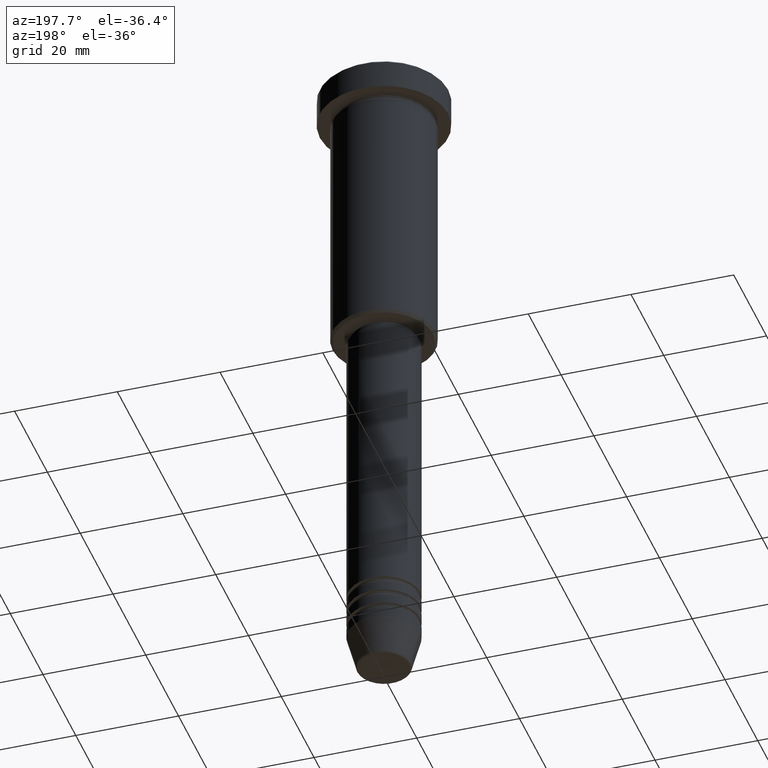
[diagram: clean part render]
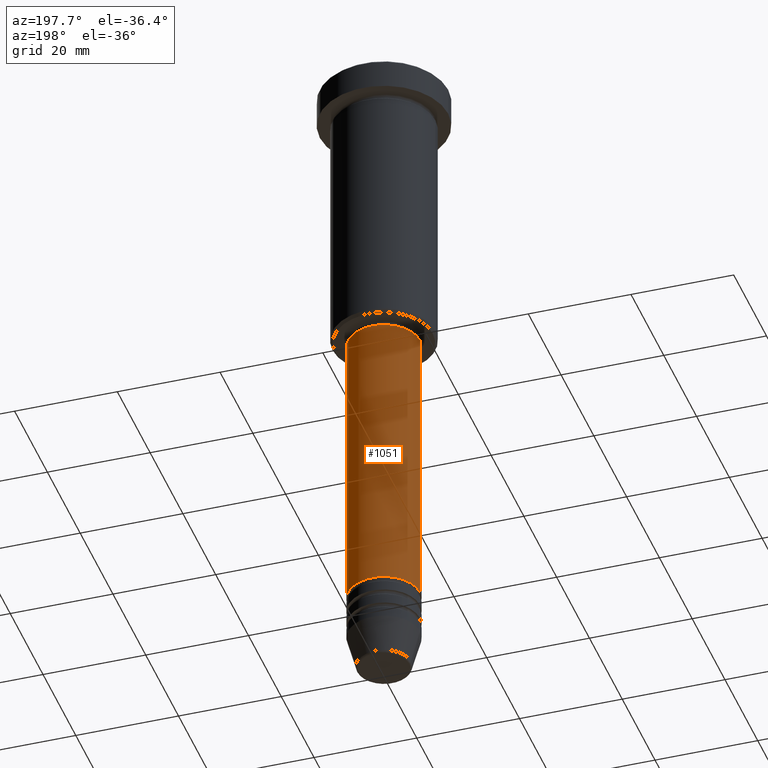
[diagram: same view with one face highlighted and labeled with its STEP entity id]
A machine part, auxiliary view. The second image highlights one B-rep face of the part: STEP entity #1051.
In plain terms, the highlighted cylindrical surface (partial cylindrical patch) has radius 7 mm, axis along (-0, -0, 1).
Its self-contained STEP definition (entity closure, byte-faithful):
#79 = EDGE_CURVE ( 'NONE', #837, #505, #297, .T. ) ;
#117 = VERTEX_POINT ( 'NONE', #1078 ) ;
#137 = EDGE_CURVE ( 'NONE', #824, #117, #781, .T. ) ;
#150 = ORIENTED_EDGE ( 'NONE', *, *, #323, .F. ) ;
#237 = CARTESIAN_POINT ( 'NONE',  ( 7.000000000000000000, 0.000000000000000000, -114.9999999999999574 ) ) ;
#297 = CIRCLE ( 'NONE', #629, 7.000000000000000000 ) ;
#302 = LINE ( 'NONE', #915, #732 ) ;
#323 = EDGE_CURVE ( 'NONE', #837, #824, #302, .T. ) ;
#416 = DIRECTION ( 'NONE',  ( 1.000000000000000000, 0.000000000000000000, 0.000000000000000000 ) ) ;
#418 = EDGE_CURVE ( 'NONE', #505, #117, #959, .T. ) ;
#430 = EDGE_LOOP ( 'NONE', ( #734, #1107, #437, #150 ) ) ;
#431 = FACE_OUTER_BOUND ( 'NONE', #430, .T. ) ;
#437 = ORIENTED_EDGE ( 'NONE', *, *, #137, .F. ) ;
#443 = CYLINDRICAL_SURFACE ( 'NONE', #545, 7.000000000000000000 ) ;
#505 = VERTEX_POINT ( 'NONE', #724 ) ;
#514 = CARTESIAN_POINT ( 'NONE',  ( 0.000000000000000000, 0.000000000000000000, -57.00000000000000000 ) ) ;
#520 = DIRECTION ( 'NONE',  ( -0.000000000000000000, -0.000000000000000000, 1.000000000000000000 ) ) ;
#545 = AXIS2_PLACEMENT_3D ( 'NONE', #1080, #723, #1068 ) ;
#601 = CARTESIAN_POINT ( 'NONE',  ( 7.000000000000000000, 0.000000000000000000, -57.00000000000000000 ) ) ;
#611 = AXIS2_PLACEMENT_3D ( 'NONE', #514, #520, #416 ) ;
#629 = AXIS2_PLACEMENT_3D ( 'NONE', #808, #1166, #987 ) ;
#723 = DIRECTION ( 'NONE',  ( -0.000000000000000000, -0.000000000000000000, 1.000000000000000000 ) ) ;
#724 = CARTESIAN_POINT ( 'NONE',  ( -7.000000000000000000, 8.572527594031473190E-16, -114.9999999999999574 ) ) ;
#732 = VECTOR ( 'NONE', #827, 1000.000000000000000 ) ;
#734 = ORIENTED_EDGE ( 'NONE', *, *, #79, .T. ) ;
#742 = VECTOR ( 'NONE', #964, 1000.000000000000000 ) ;
#781 = CIRCLE ( 'NONE', #611, 7.000000000000000000 ) ;
#808 = CARTESIAN_POINT ( 'NONE',  ( 0.000000000000000000, 0.000000000000000000, -114.9999999999999574 ) ) ;
#824 = VERTEX_POINT ( 'NONE', #601 ) ;
#827 = DIRECTION ( 'NONE',  ( -0.000000000000000000, -0.000000000000000000, 1.000000000000000000 ) ) ;
#837 = VERTEX_POINT ( 'NONE', #237 ) ;
#869 = CARTESIAN_POINT ( 'NONE',  ( -7.000000000000000000, 8.572527594031473190E-16, 0.000000000000000000 ) ) ;
#915 = CARTESIAN_POINT ( 'NONE',  ( 7.000000000000000000, 0.000000000000000000, 0.000000000000000000 ) ) ;
#959 = LINE ( 'NONE', #869, #742 ) ;
#964 = DIRECTION ( 'NONE',  ( -0.000000000000000000, -0.000000000000000000, 1.000000000000000000 ) ) ;
#987 = DIRECTION ( 'NONE',  ( 1.000000000000000000, 0.000000000000000000, 0.000000000000000000 ) ) ;
#1051 = ADVANCED_FACE ( 'NONE', ( #431 ), #443, .T. ) ;
#1068 = DIRECTION ( 'NONE',  ( 1.000000000000000000, 0.000000000000000000, 0.000000000000000000 ) ) ;
#1078 = CARTESIAN_POINT ( 'NONE',  ( -7.000000000000000000, 8.572527594031473190E-16, -57.00000000000000000 ) ) ;
#1080 = CARTESIAN_POINT ( 'NONE',  ( 0.000000000000000000, 0.000000000000000000, 0.000000000000000000 ) ) ;
#1107 = ORIENTED_EDGE ( 'NONE', *, *, #418, .T. ) ;
#1166 = DIRECTION ( 'NONE',  ( -0.000000000000000000, -0.000000000000000000, 1.000000000000000000 ) ) ;